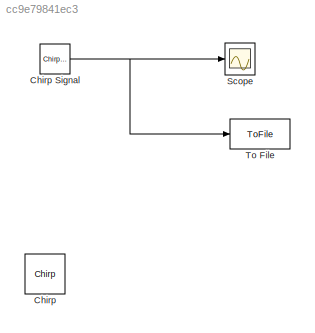
MODEL slx_cc9e79841ec3
KIND model
BLOCK [Reference] Chirp  REF=dspsrcs4/Chirp
  Ports = [0, 1]
  SourceBlock = dspsrcs4/Chirp
  SourceType = Chirp
  Ts = 1/400
  Tsweep = 1
  datatype = Double
  f0 = 0
  f1 = 25
  mode = Unidirectional
  phase = 0
  spf = 400
  sweep = Linear
  t1 = 1
BLOCK [Reference] Chirp Signal  REF=simulink/Sources/Chirp Signal
  Ports = [0, 1]
  SourceBlock = simulink/Sources/Chirp Signal
  SourceType = chirp
  T = 50
  VectorParams1D = on
  f1 = 1
  f2 = 150
BLOCK [Scope] Scope
  Floating = off
  MaxDataPoints = 50000
  NumInputPorts = 1
  Ports = [1]
  ShowLegends = off
BLOCK [ToFile] To File
  Filename = chirp.mat
  Ports = [1]
NET Chirp Signal:1 -> Scope:1, To File:1
note: NET lines group one-source signal fan-out (src -> all destinations, sorted); 1:1 wires keep LINE
